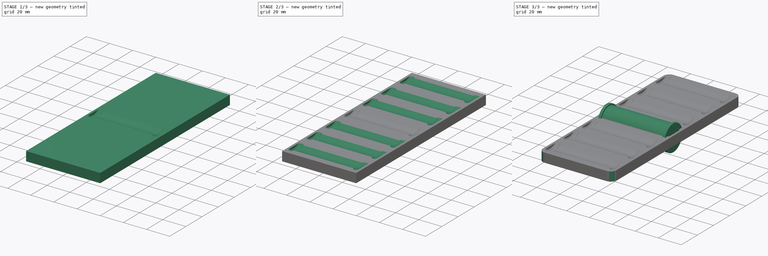
[diagram: build sequence overview — one tinted view per stage of 3, left to right]
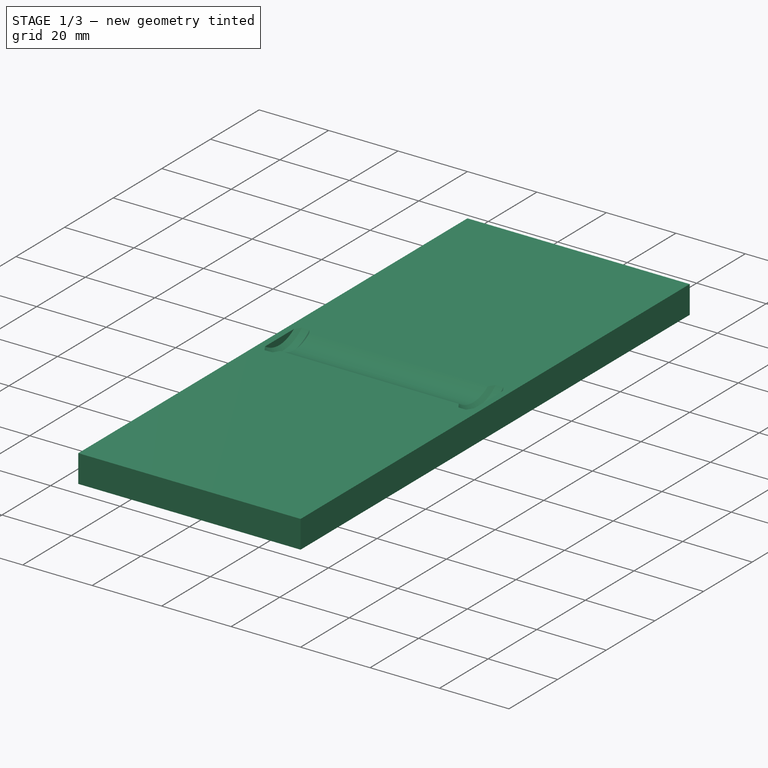
[diagram: stage 1 of 3 — iso view after this stage's code; geometry added in this stage tinted green]
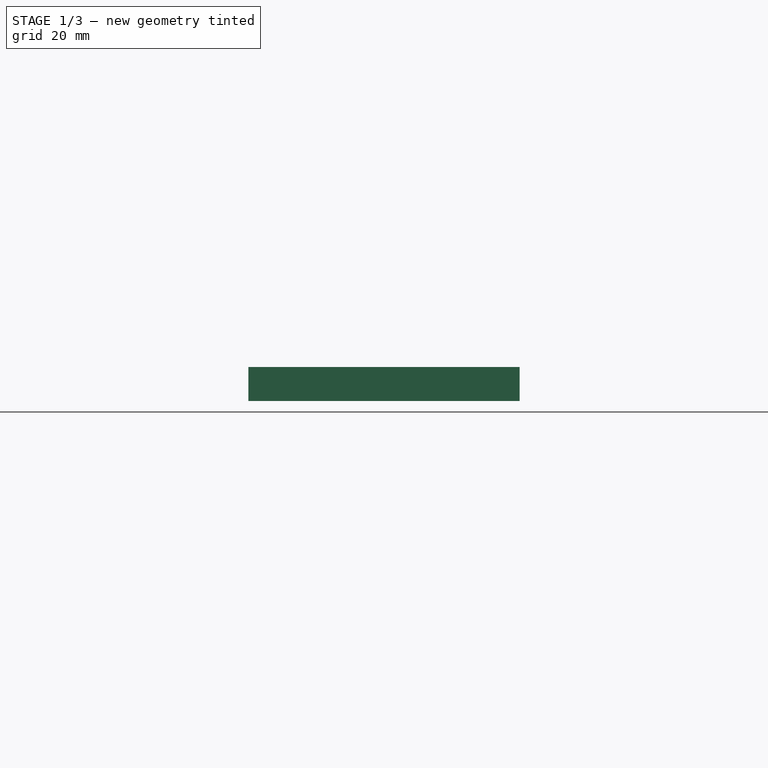
[diagram: stage 1 of 3 — front view after this stage's code; geometry added in this stage tinted green]
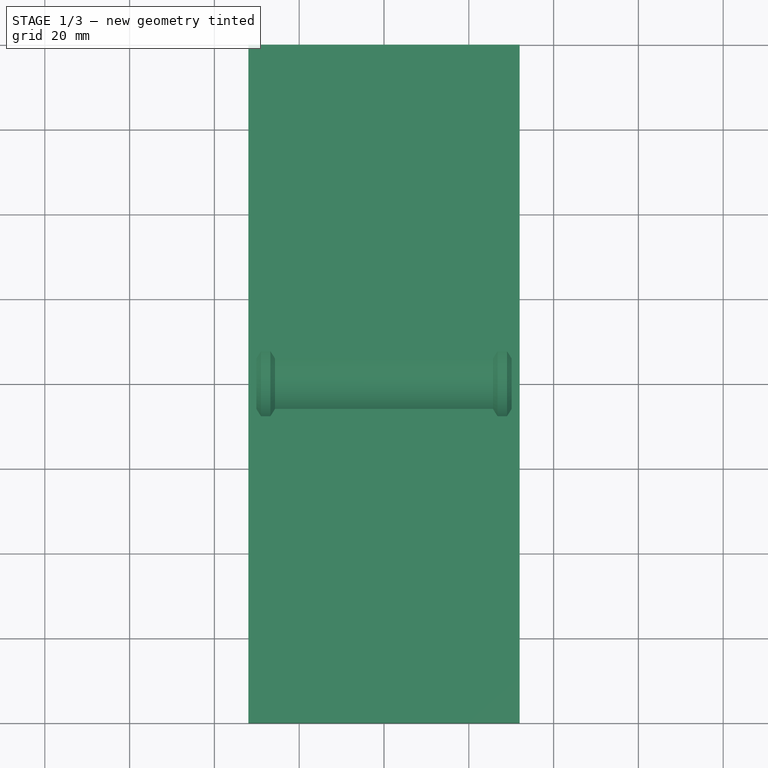
[diagram: stage 1 of 3 — top view after this stage's code; geometry added in this stage tinted green]
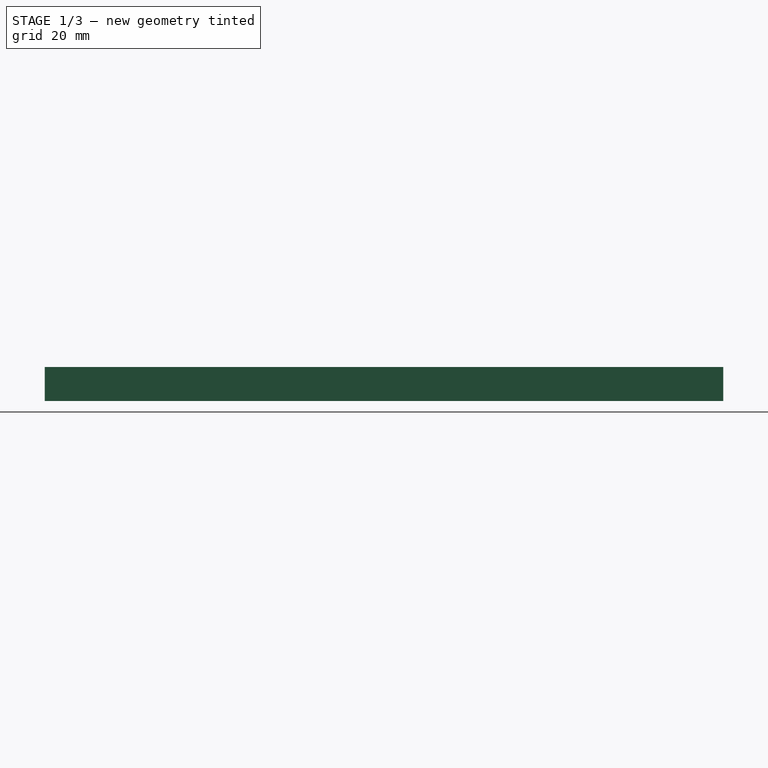
[diagram: stage 1 of 3 — right view after this stage's code; geometry added in this stage tinted green]
FCSTD DOCUMENT  (FreeCAD 0.19R24291 (Git))
Label: 12_gauge_shotgun_shell_horizontal_organizer
License: All rights reserved
LicenseURL: http://en.wikipedia.org/wiki/All_rights_reserved
objects: Sketcher::SketchObject×3, PartDesign::Plane×2, PartDesign::Body×2, PartDesign::LinearPattern×2, PartDesign::Pad×1, PartDesign::Revolution×1, PartDesign::Line×1, PartDesign::Groove×1, PartDesign::Mirrored×1, PartDesign::MultiTransform×1, PartDesign::Fillet×1, App::Part×1
note: 20 computed .brp shape members not serialized (recipe doc carries the construction recipe); baked Part::Feature solids carry a one-line shape summary decoded from their .brp

FEATURE [Sketcher::SketchObject] Sketch  label="SketchPlate"
  FullyConstrained = true
  MapMode = 5
  Support = -> [XY_Plane001]
  sketch-geometry (4):
    g0: LineSegment StartX=-32 StartY=-80 StartZ=0 EndX=32 EndY=-80 EndZ=0
    g1: LineSegment StartX=32 StartY=-80 StartZ=0 EndX=32 EndY=80 EndZ=0
    g2: LineSegment StartX=32 StartY=80 StartZ=0 EndX=-32 EndY=80 EndZ=0
    g3: LineSegment StartX=-32 StartY=80 StartZ=0 EndX=-32 EndY=-80 EndZ=0
  constraints (11):
    c: Coincident(g0,g1)
    c: Coincident(g1,g2)
    c: Coincident(g2,g3)
    c: Horizontal(g2)
    c: Vertical(g1)
    c: DistanceY(g1,g1) = 160  'plate_length'
    c: Coincident(g0,g3)
    c: Vertical(g3)
    c: DistanceX(g0,g0) = 64
    c: Symmetric(g0,g1,g-1)
    c: Horizontal(g0)
FEATURE [PartDesign::Pad] Pad
  Direction = (1,1,1)
  Length = 8
  Length2 = 100
  Midplane = true
  Profile = -> Sketch
  Type = 0
FEATURE [PartDesign::Plane] DatumPlane
  Length = 68.7703
  MapMode = 2
  ResizeMode = 0
  Support = -> [Pad]
  Width = 60.7703
FEATURE [PartDesign::Body] Body001  label="BodyShell"
  Group = -> [Revolution,Sketch001,DatumPlane]
  Origin = -> Origin002
  Placement = pos=(0,0,-4) rot=(0,0,1;0rad)
  Tip = -> Revolution
FEATURE [PartDesign::Plane] DatumPlane001
  Length = 75.3137
  MapMode = 5
  Placement = pos=(0,0,0) rot=(1,0,0;1.5708rad)
  ResizeMode = 0
  Support = -> [XZ_Plane001]
  Width = 61.3137
FEATURE [Sketcher::SketchObject] Sketch002  label="SketchShell"
  FullyConstrained = true
  Placement = pos=(0,0,0) rot=(1,0,0;1.5708rad)
  sketch-geometry (19):
    g0: LineSegment StartX=-29 StartY=12.3 StartZ=0 EndX=29 EndY=12.3 EndZ=0
    g1: LineSegment StartX=29 StartY=12.3 StartZ=0 EndX=29 EndY=1 EndZ=0
    g2: LineSegment StartX=-29 StartY=1 StartZ=0 EndX=-29 EndY=12.3 EndZ=0
    g3: LineSegment StartX=-29 StartY=1 StartZ=0 EndX=-26.8 EndY=1 EndZ=0
    g4: LineSegment StartX=-26.8 StartY=1 StartZ=0 EndX=-26.8 EndY=2.1 EndZ=0
    g5: LineSegment StartX=-26.8 StartY=2.1 StartZ=0 EndX=26.8 EndY=2.1 EndZ=0
    g6: LineSegment StartX=26.8 StartY=2.1 StartZ=0 EndX=26.8 EndY=1 EndZ=0
    g7: LineSegment StartX=26.8 StartY=1 StartZ=0 EndX=29 EndY=1 EndZ=0
    g8: LineSegment StartX=-29 StartY=12.3 StartZ=0 EndX=-29 EndY=23.6 EndZ=0
    g9: LineSegment StartX=-26.8 StartY=2.1 StartZ=0 EndX=-26.8 EndY=22.5 EndZ=0
    g10: LineSegment StartX=25.7 StartY=2.1 StartZ=0 EndX=-25.7 EndY=2.1 EndZ=0
    g11: LineSegment StartX=-25.7 StartY=2.1 StartZ=0 EndX=-26.8 EndY=1 EndZ=0
    g12: LineSegment StartX=26.8 StartY=1 StartZ=0 EndX=25.7 EndY=2.1 EndZ=0
    g13: LineSegment StartX=29 StartY=1 StartZ=0 EndX=30.1 EndY=2.1 EndZ=0
    g14: LineSegment StartX=30.1 StartY=2.1 StartZ=0 EndX=30.1 EndY=12.3 EndZ=0
    g15: LineSegment StartX=30.1 StartY=12.3 StartZ=0 EndX=29 EndY=12.3 EndZ=0
    g16: LineSegment StartX=-29 StartY=1 StartZ=0 EndX=-30.1 EndY=2.1 EndZ=0
    g17: LineSegment StartX=-30.1 StartY=12.3 StartZ=0 EndX=-29 EndY=12.3 EndZ=0
    g18: LineSegment StartX=-30.1 StartY=12.3 StartZ=0 EndX=-30.1 EndY=2.1 EndZ=0
  constraints (52):
    c: Coincident(g0,g1)
    c: Coincident(g2,g0)
    c: Vertical(g1)
    c: Vertical(g2)
    c: Coincident(g2,g3)
    c: Horizontal(g3)
    c: Coincident(g3,g4)
    c: Vertical(g4)
    c: Coincident(g4,g5)
    c: Horizontal(g5)
    c: Coincident(g5,g6)
    c: Vertical(g6)
    c: Coincident(g6,g7)
    c: Coincident(g7,g1)
    c: Horizontal(g7)
    c: Equal(g4,g6)
    c: Equal(g3,g7)
    c: Symmetric(g0,g0,g-2)
    c: DistanceX(g0,g0) = 58
    c: DistanceX(g3,g3) = 2.2
    c: Coincident(g0,g8)
    c: Vertical(g8)
    c: Coincident(g4,g9)
    c: Symmetric(g4,g9,g0)
    c: DistanceY(g2,g8) = 22.6  'outer_dia'
    c: DistanceY(g9,g9) = 20.4
    c: Equal(g2,g8)
    c: DistanceY(g-1,g3) = 1  'depth_offset'
    c: PointOnObject(g10,g5)
    c: PointOnObject(g10,g5)
    c: Coincident(g11,g10)
    c: Coincident(g11,g3)
    c: Coincident(g12,g7)
    c: Coincident(g12,g10)
    c: Angle(g5,g12) = 2.35619
    c: Angle(g11,g10) = 2.35619
    c: Coincident(g7,g13)
    c: Coincident(g13,g14)
    c: Vertical(g14)
    c: Coincident(g14,g15)
    c: Coincident(g15,g0)
    c: Horizontal(g15)
    c: PointOnObject(g13,g5)
    c: Angle(g13,g7) = 2.35619
    c: Coincident(g3,g16)
    c: Coincident(g17,g0)
    c: Horizontal(g17)
    c: PointOnObject(g16,g5)
    c: Coincident(g18,g17)
    c: Coincident(g18,g16)
    c: Vertical(g18)
    c: Angle(g3,g16) = 2.35619
FEATURE [PartDesign::Line] DatumLine
  AttacherType = Attacher::AttachEngineLine
  Length = 20
  MapMode = 29
  Placement = pos=(0,2.7e-15,12.3) rot=(0.57735,0.57735,0.57735;2.0944rad)
  ResizeMode = 0
  Support = -> [Sketch002]
FEATURE [PartDesign::Groove] Groove
  Angle = 360
  Axis = (1,0,0)
  Base = (0,2.7e-15,12.3)
  BaseFeature = -> Pad
  Profile = -> Sketch002
  ReferenceAxis = -> DatumLine
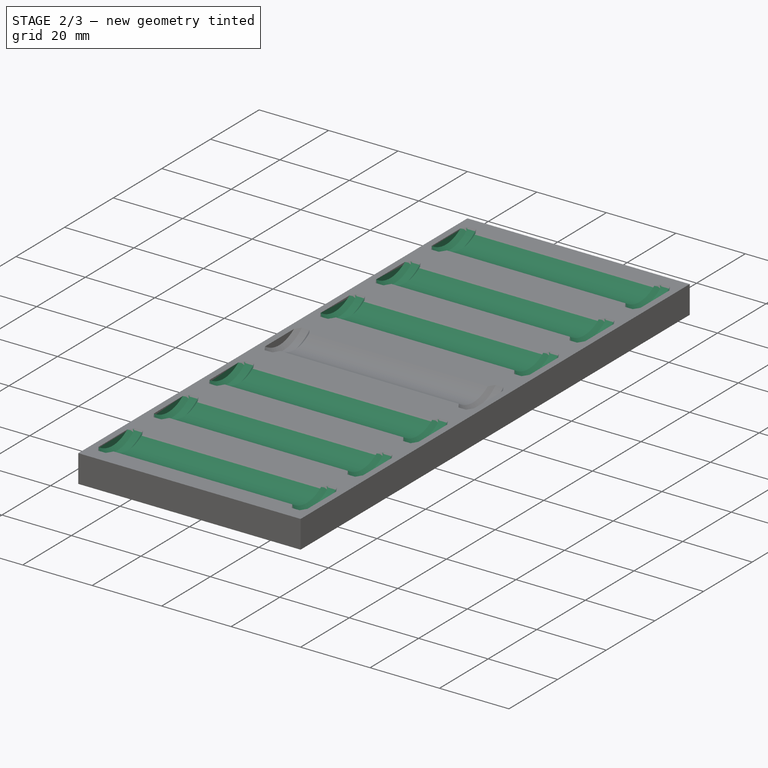
[diagram: stage 2 of 3 — iso view after this stage's code; geometry added in this stage tinted green]
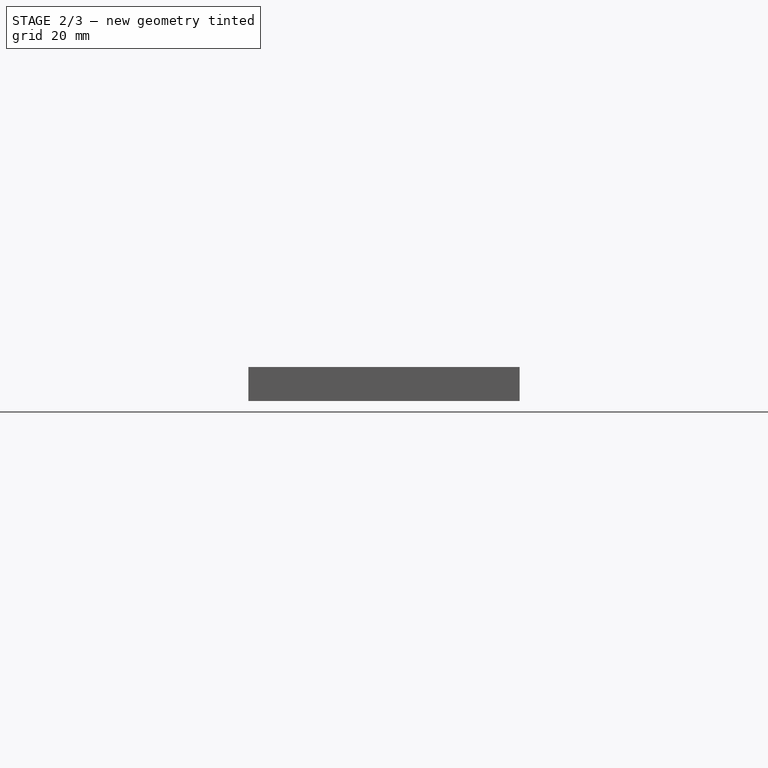
[diagram: stage 2 of 3 — front view after this stage's code; geometry added in this stage tinted green]
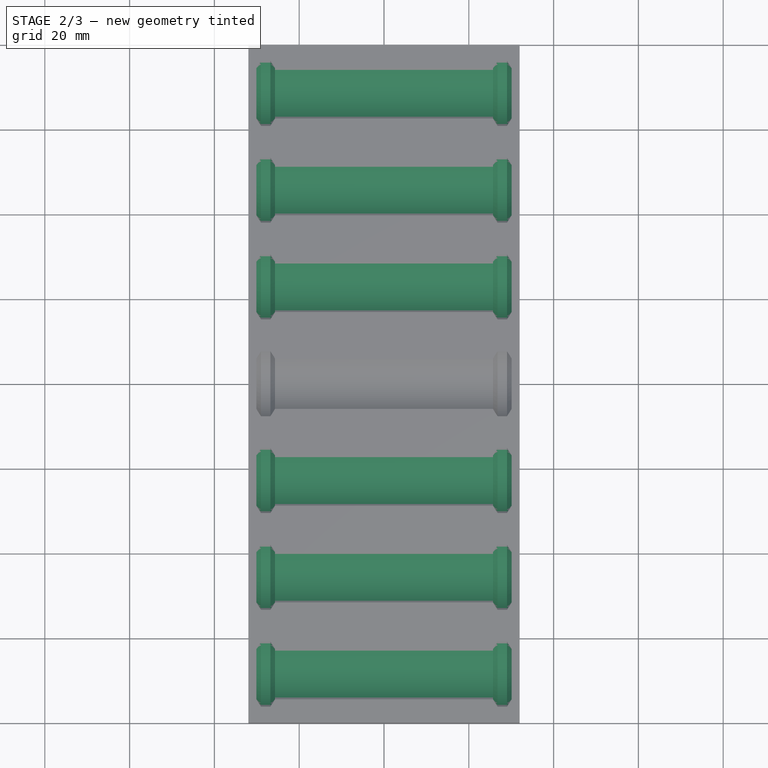
[diagram: stage 2 of 3 — top view after this stage's code; geometry added in this stage tinted green]
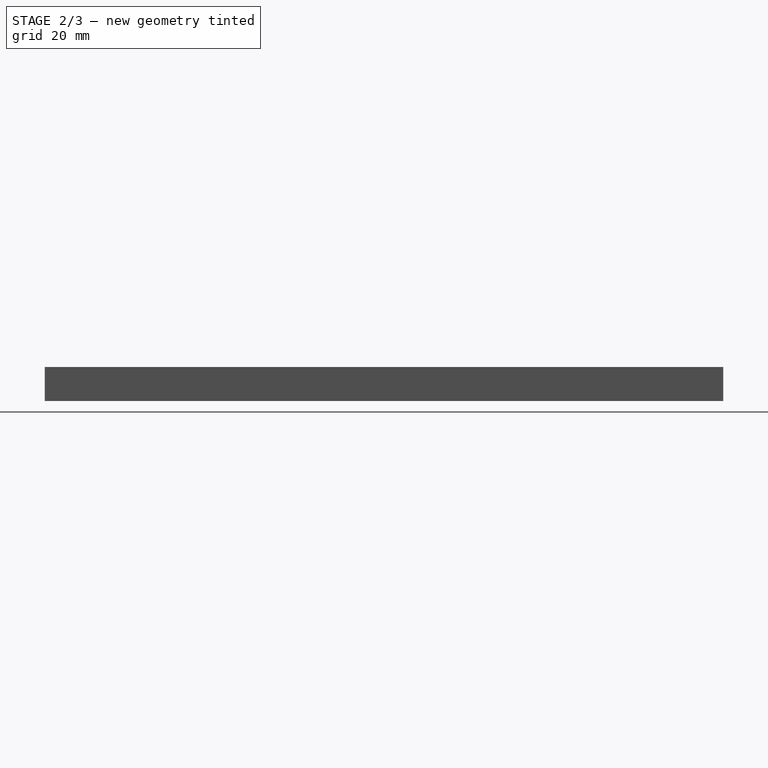
[diagram: stage 2 of 3 — right view after this stage's code; geometry added in this stage tinted green]
FEATURE [PartDesign::LinearPattern] LinearPattern
  Direction = -> Y_Axis001
  Length = 68.5
  Occurrences = 4
FEATURE [PartDesign::LinearPattern] LinearPattern001
  Direction = -> Z_Axis001
  Length = 24.6
  Occurrences = 2
  Reversed = true
  expr: Length = <<SketchShell>>.Constraints.outer_dia + 2 * <<SketchShell>>.Constraints.depth_offset
FEATURE [PartDesign::Mirrored] Mirrored
  MirrorPlane = -> XZ_Plane001
FEATURE [PartDesign::MultiTransform] MultiTransform
  BaseFeature = -> Groove
  Originals = -> [Groove]
  Transformations = -> [LinearPattern,Mirrored,LinearPattern001]
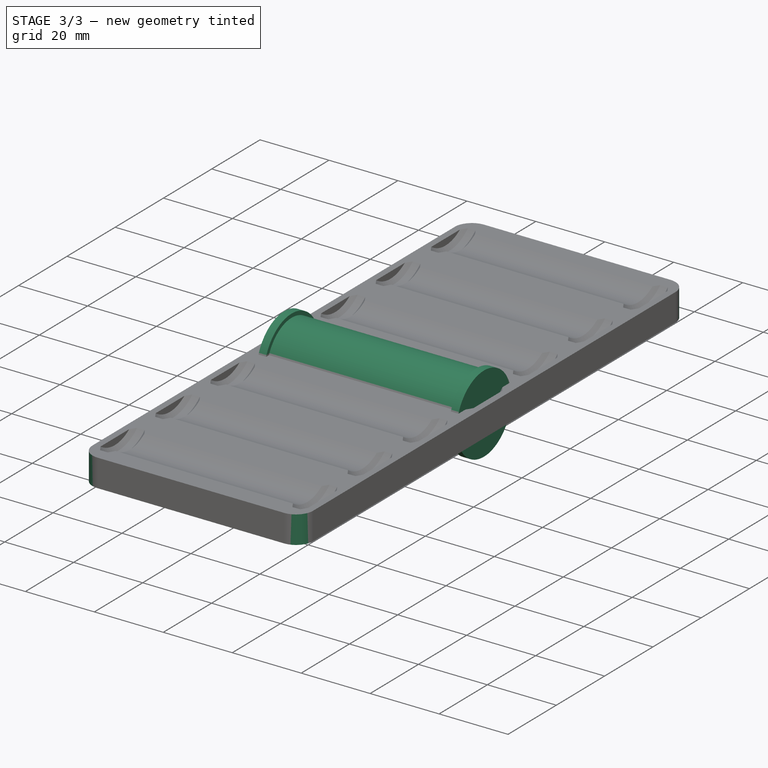
[diagram: stage 3 of 3 — iso view after this stage's code; geometry added in this stage tinted green]
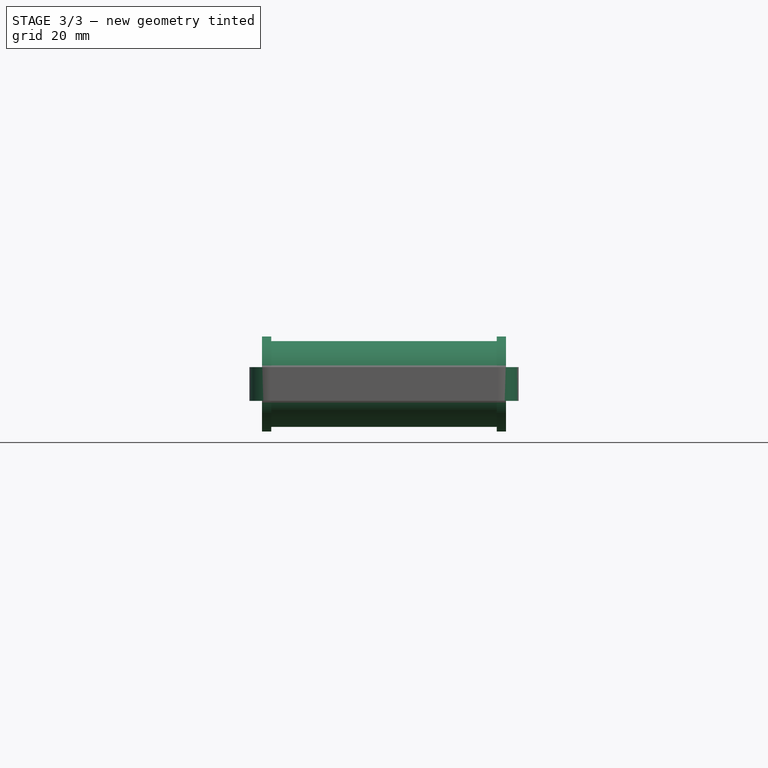
[diagram: stage 3 of 3 — front view after this stage's code; geometry added in this stage tinted green]
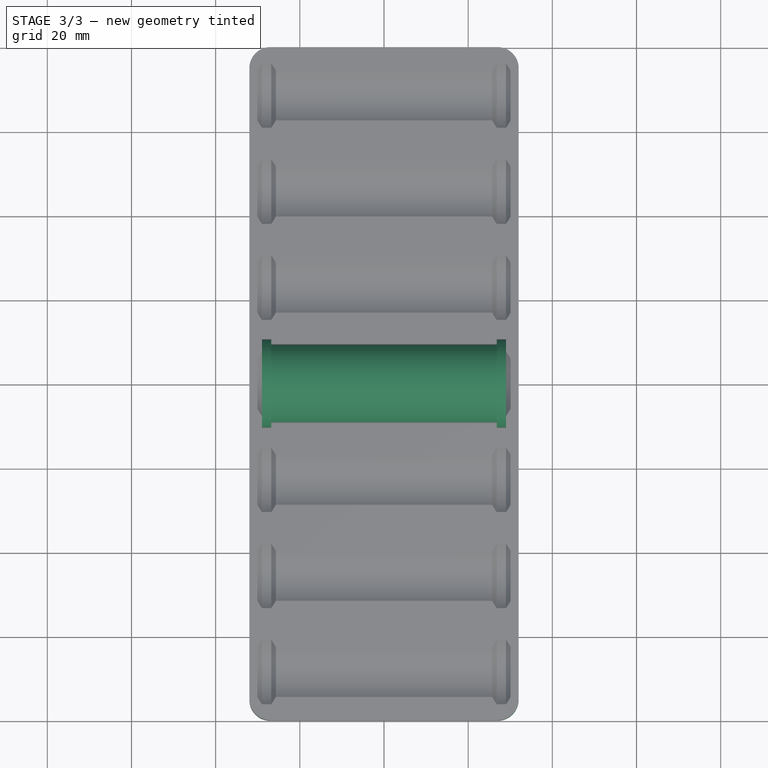
[diagram: stage 3 of 3 — top view after this stage's code; geometry added in this stage tinted green]
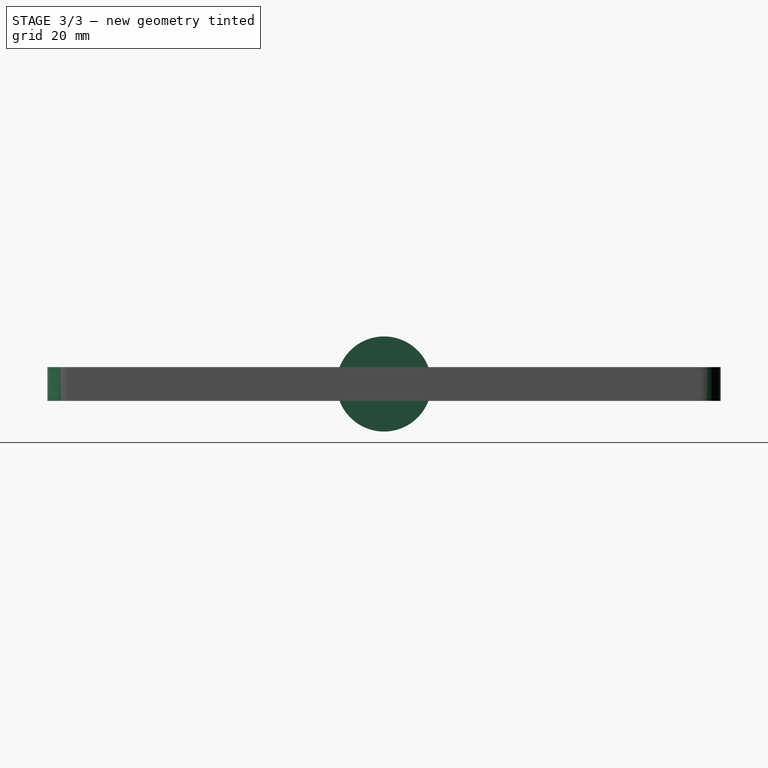
[diagram: stage 3 of 3 — right view after this stage's code; geometry added in this stage tinted green]
FEATURE [Sketcher::SketchObject] Sketch001
  FullyConstrained = true
  MapMode = 5
  Support = -> [XY_Plane002]
  sketch-geometry (10):
    g0: LineSegment StartX=-29 StartY=0 StartZ=0 EndX=-29 EndY=11.3 EndZ=0
    g1: LineSegment StartX=-29 StartY=11.3 StartZ=0 EndX=-26.8 EndY=11.3 EndZ=0
    g2: LineSegment StartX=-26.8 StartY=11.3 StartZ=0 EndX=-26.8 EndY=10.2 EndZ=0
    g3: LineSegment StartX=29 StartY=11.3 StartZ=0 EndX=29 EndY=0 EndZ=0
    g4: LineSegment StartX=29 StartY=0 StartZ=0 EndX=-29 EndY=0 EndZ=0
    g5: LineSegment StartX=29 StartY=11.3 StartZ=0 EndX=26.8 EndY=11.3 EndZ=0
    g6: LineSegment StartX=-26.8 StartY=10.2 StartZ=0 EndX=26.8 EndY=10.2 EndZ=0
    g7: LineSegment StartX=26.8 StartY=10.2 StartZ=0 EndX=26.8 EndY=11.3 EndZ=0
    g8: LineSegment StartX=-29 StartY=0 StartZ=0 EndX=-29 EndY=-11.3 EndZ=0
    g9: LineSegment StartX=-26.8 StartY=10.2 StartZ=0 EndX=-26.8 EndY=-10.2 EndZ=0
  constraints (28):
    c: Coincident(g0,g1)
    c: Horizontal(g1)
    c: Coincident(g1,g2)
    c: Vertical(g3)
    c: Coincident(g3,g4)
    c: Coincident(g4,g0)
    c: Equal(g3,g0)
    c: DistanceX(g1,g1) = 2.2
    c: Vertical(g2)
    c: Vertical(g0)
    c: Horizontal(g4)
    c: Symmetric(g0,g3,g-1)
    c: Coincident(g3,g5)
    c: Horizontal(g5)
    c: Coincident(g2,g6)
    c: Horizontal(g6)
    c: Coincident(g6,g7)
    c: Coincident(g7,g5)
    c: Vertical(g7)
    c: Equal(g1,g5)
    c: DistanceX(g4,g4) = 58
    c: Coincident(g8,g0)
    c: Vertical(g8)
    c: Equal(g8,g0)
    c: DistanceY(g8,g0) = 22.6
    c: Coincident(g2,g9)
    c: Symmetric(g2,g9,g4)
    c: DistanceY(g9,g9) = 20.4
FEATURE [PartDesign::Revolution] Revolution
  Angle = 360
  Axis = (1,0,0)
  Base = (0,0,0)
  Profile = -> Sketch001
  ReferenceAxis = -> X_Axis002
FEATURE [PartDesign::Fillet] Fillet
  Base = -> MultiTransform [Edge2,Edge1,Edge5,Edge8]
  BaseFeature = -> MultiTransform
  Radius = 5
  SupportTransform = false
FEATURE [PartDesign::Body] Body  label="BodyCarrier"
  Group = -> [Pad,Sketch,DatumPlane001,Sketch002,DatumLine,Groove,MultiTransform,LinearPattern,LinearPattern001,Mirrored,Fillet]
  Origin = -> Origin001
  Tip = -> Fillet
FEATURE [App::Part] Part
  Group = -> [Body,Body001]
  Origin = -> Origin
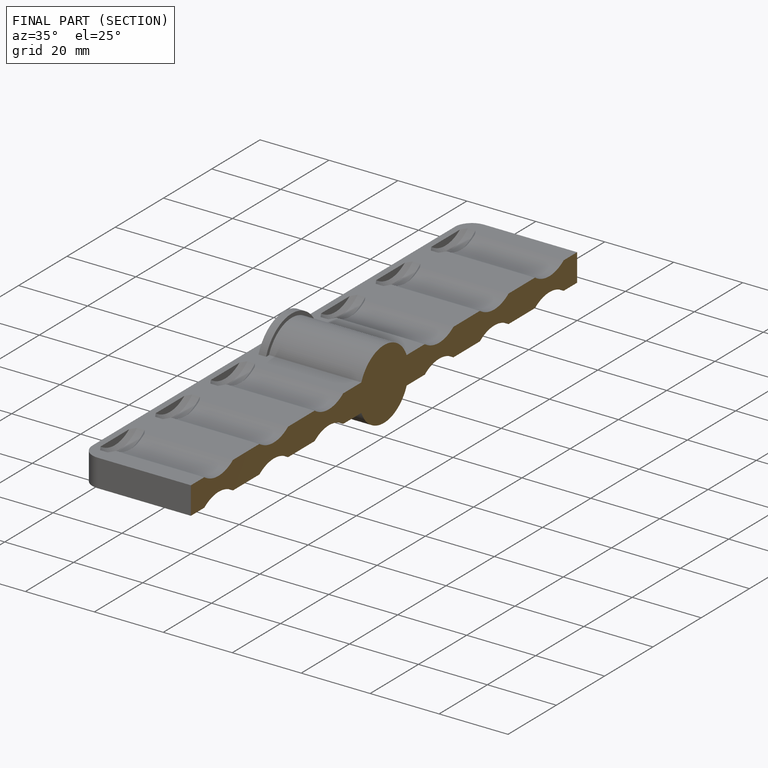
[diagram: finished part — half-section view (interior)]
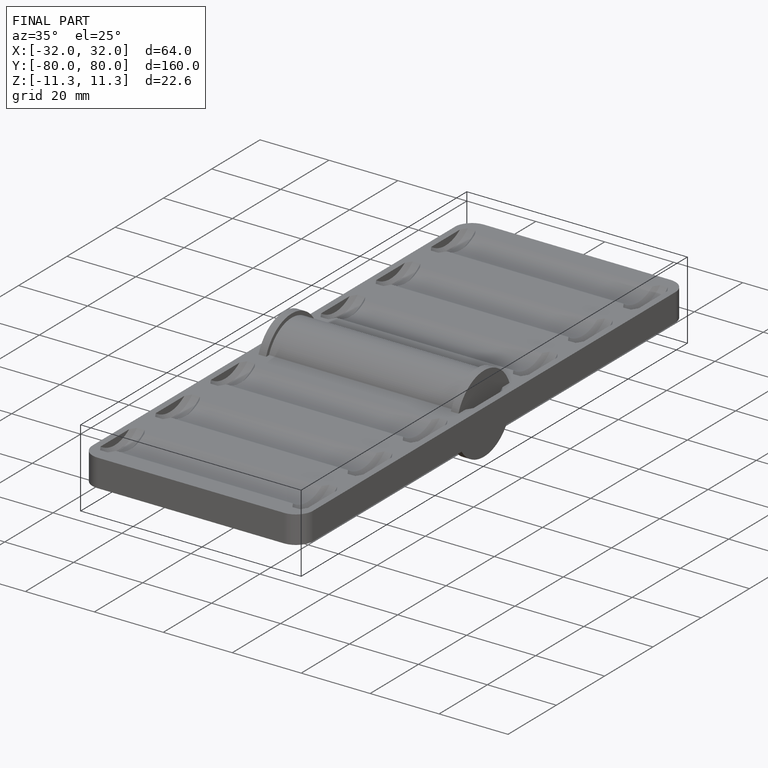
[diagram: finished part — iso view with bounding-box wireframe]
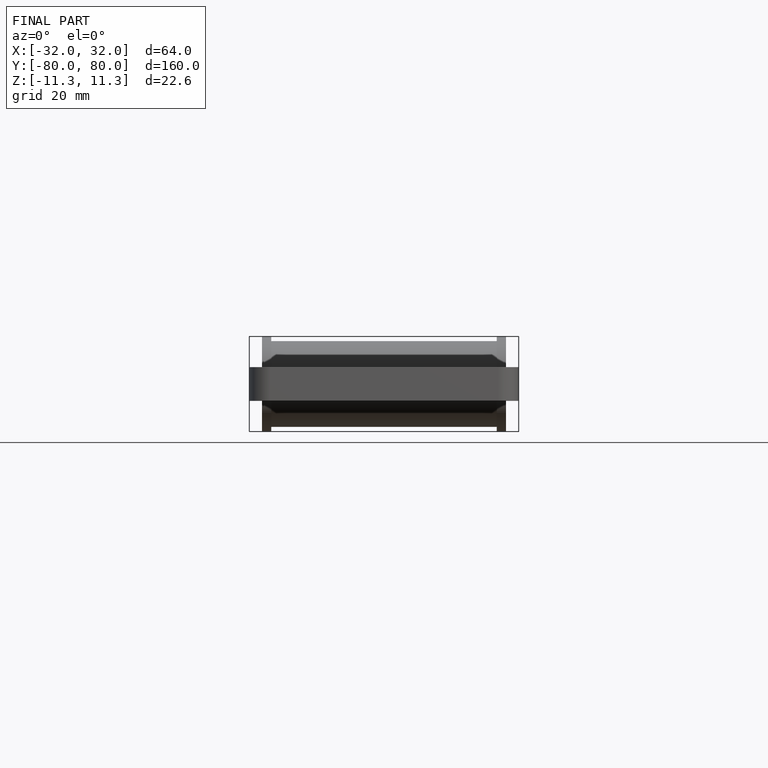
[diagram: finished part — front view with bounding-box wireframe]
